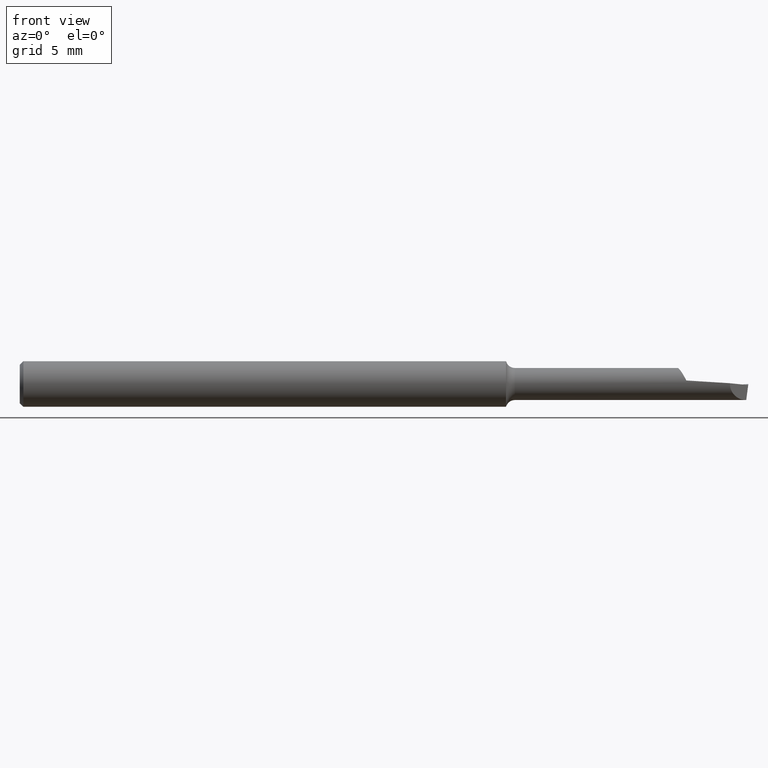
[diagram: clean part render]
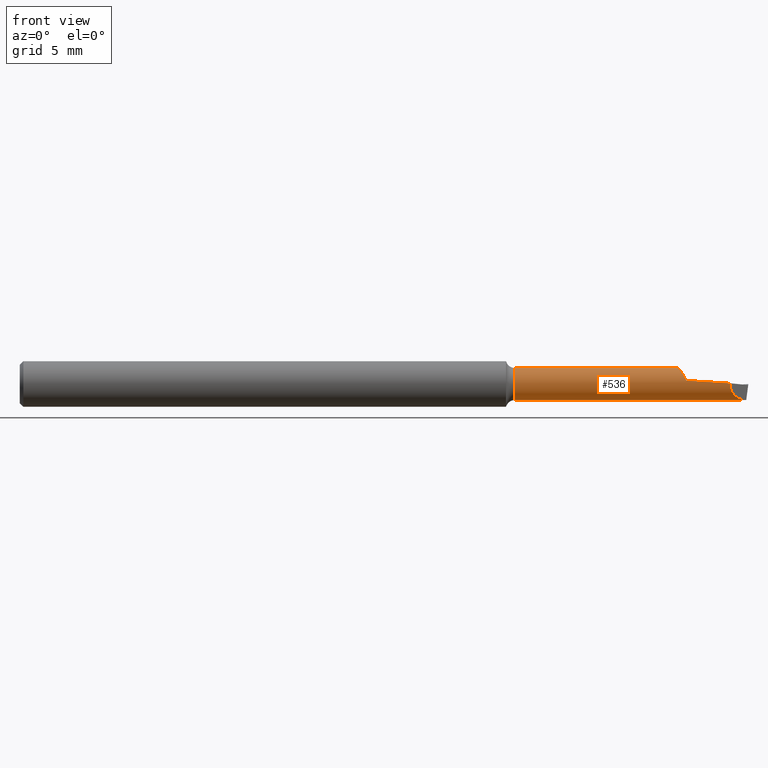
[diagram: same view with one face highlighted and labeled with its STEP entity id]
A machine part, front view. The second image highlights one B-rep face of the part: STEP entity #536.
In plain terms, the highlighted cylindrical surface (edge-blend (fillet) strip) has radius 1.1176 mm, axis along (-1, -0, -0).
Its self-contained STEP definition (entity closure, byte-faithful):
#3 = FACE_OUTER_BOUND ( 'NONE', #371, .T. ) ;
#32 = VERTEX_POINT ( 'NONE', #291 ) ;
#49 = CARTESIAN_POINT ( 'NONE',  ( 1.823979950717056875, -0.03902664238057330232, 0.02091026233644392371 ) ) ;
#54 = CARTESIAN_POINT ( 'NONE',  ( 1.949539431800300759, -0.04394692464801779747, 0.002160512434919499136 ) ) ;
#77 = VECTOR ( 'NONE', #466, 39.37007874015748143 ) ;
#106 = CIRCLE ( 'NONE', #582, 0.04399999999999992806 ) ;
#117 = CARTESIAN_POINT ( 'NONE',  ( 1.808444069729441050, -0.009427309947746567026, 0.04328785400758622393 ) ) ;
#122 = CARTESIAN_POINT ( 'NONE',  ( 1.810833164853624888, -0.01675818655935261761, 0.04076568780972762707 ) ) ;
#140 = LINE ( 'NONE', #657, #77 ) ;
#178 = VECTOR ( 'NONE', #243, 39.37007874015748143 ) ;
#185 =( BOUNDED_CURVE ( )  B_SPLINE_CURVE ( 3, ( #54, #581, #327, #578 ),
 .UNSPECIFIED., .F., .T. ) 
 B_SPLINE_CURVE_WITH_KNOTS ( ( 4, 4 ),
 ( 6.234062998859242200, 7.853981633974482790 ),
 .UNSPECIFIED. ) 
 CURVE ( )  GEOMETRIC_REPRESENTATION_ITEM ( )  RATIONAL_B_SPLINE_CURVE ( ( 1.000000000000000000, 0.7930185987682636384, 0.7930185987682636384, 1.000000000000000000 ) ) 
 REPRESENTATION_ITEM ( '' )  );
#186 = EDGE_CURVE ( 'NONE', #597, #806, #423, .T. ) ;
#190 = CARTESIAN_POINT ( 'NONE',  ( 1.826799474658925782, -0.04153783979242344632, 0.01579910718997215927 ) ) ;
#235 = CARTESIAN_POINT ( 'NONE',  ( 1.829992566228702877, -0.04291472308783400580, 0.009712185248157291506 ) ) ;
#242 = EDGE_CURVE ( 'NONE', #32, #685, #809, .T. ) ;
#243 = DIRECTION ( 'NONE',  ( -1.000000000000000000, -0.000000000000000000, -0.000000000000000000 ) ) ;
#258 = CARTESIAN_POINT ( 'NONE',  ( 1.814916789186051371, -0.02613563337595397121, 0.03539735944788183208 ) ) ;
#266 = CARTESIAN_POINT ( 'NONE',  ( 1.817210813992215623, -0.03034791570795263710, 0.03206382742248452267 ) ) ;
#269 = CARTESIAN_POINT ( 'NONE',  ( 1.949539431800300759, -0.04394692464801779747, 0.002160512434919499136 ) ) ;
#291 = CARTESIAN_POINT ( 'NONE',  ( 1.840000000000000302, 0.000000000000000000, -0.04399999999999999745 ) ) ;
#327 = CARTESIAN_POINT ( 'NONE',  ( 1.966696399294493691, -0.02678995715382523346, -0.04399999999999997663 ) ) ;
#337 = DIRECTION ( 'NONE',  ( 0.000000000000000000, 0.000000000000000000, 1.000000000000000000 ) ) ;
#354 = DIRECTION ( 'NONE',  ( -1.000000000000000000, -0.000000000000000000, -0.000000000000000000 ) ) ;
#367 = ORIENTED_EDGE ( 'NONE', *, *, #828, .T. ) ;
#371 = EDGE_LOOP ( 'NONE', ( #560, #757, #736, #476, #499, #367, #383 ) ) ;
#382 = CARTESIAN_POINT ( 'NONE',  ( 1.359099325716708107, 0.000000000000000000, 0.04399999999999992806 ) ) ;
#383 = ORIENTED_EDGE ( 'NONE', *, *, #545, .F. ) ;
#387 = CARTESIAN_POINT ( 'NONE',  ( 1.806645572135293198, -1.605047027801943588E-06, 0.04400469612014611120 ) ) ;
#390 = CARTESIAN_POINT ( 'NONE',  ( 1.819185620383701574, -0.03342947752350876323, 0.02903080982310496730 ) ) ;
#391 = VERTEX_POINT ( 'NONE', #382 ) ;
#399 = EDGE_CURVE ( 'NONE', #597, #552, #185, .T. ) ;
#405 = EDGE_CURVE ( 'NONE', #806, #507, #481, .T. ) ;
#423 =( BOUNDED_CURVE ( )  B_SPLINE_CURVE ( 2, ( #816, #746, #235 ),
 .UNSPECIFIED., .F., .T. ) 
 B_SPLINE_CURVE_WITH_KNOTS ( ( 3, 3 ),
 ( 0.09455965140952782289, 0.3148910267384269490 ),
 .UNSPECIFIED. ) 
 CURVE ( )  GEOMETRIC_REPRESENTATION_ITEM ( )  RATIONAL_B_SPLINE_CURVE ( ( 0.9833022579123034124, 0.9780948911032535387, 0.9802687885623562192 ) ) 
 REPRESENTATION_ITEM ( '' )  );
#464 = CARTESIAN_POINT ( 'NONE',  ( 1.993486356448318952, 2.561107494060246767E-17, -0.04399999999999999745 ) ) ;
#466 = DIRECTION ( 'NONE',  ( 1.000000000000000000, -0.000000000000000000, -0.000000000000000000 ) ) ;
#467 = CYLINDRICAL_SURFACE ( 'NONE', #501, 0.04399999999999996275 ) ;
#471 = CARTESIAN_POINT ( 'NONE',  ( 0.000000000000000000, 0.000000000000000000, 0.000000000000000000 ) ) ;
#476 = ORIENTED_EDGE ( 'NONE', *, *, #186, .T. ) ;
#477 = CARTESIAN_POINT ( 'NONE',  ( 0.000000000000000000, 0.000000000000000000, 0.04399999999999996275 ) ) ;
#481 = B_SPLINE_CURVE_WITH_KNOTS ( 'NONE', 3,
 ( #749, #190, #49, #390, #266, #569, #769, #258, #509, #836, #512, #701, #629, #502, #122, #117, #756, #387 ),
 .UNSPECIFIED., .F., .F.,
 ( 4, 2, 2, 1, 2, 2, 1, 2, 2, 4 ),
 ( 0.000000000000000000, 0.2283272976861365766, 0.4566545953722731532, 0.4851955075830431952, 0.4994659636884280496, 0.5066011917411206156, 0.5137364197938132371, 0.5708182442153262315, 0.6849818930583525534, 0.9133091907444047530 ),
 .UNSPECIFIED. ) ;
#490 = CARTESIAN_POINT ( 'NONE',  ( 0.000000000000000000, 5.388445916248349113E-18, -0.04399999999999996275 ) ) ;
#492 = CARTESIAN_POINT ( 'NONE',  ( 1.829992566228702877, -0.04291472308783400580, 0.009712185248157291506 ) ) ;
#499 = ORIENTED_EDGE ( 'NONE', *, *, #405, .T. ) ;
#501 = AXIS2_PLACEMENT_3D ( 'NONE', #471, #725, #521 ) ;
#502 = CARTESIAN_POINT ( 'NONE',  ( 1.811745317520776499, -0.01920173961563133996, 0.03968366555626485354 ) ) ;
#507 = VERTEX_POINT ( 'NONE', #533 ) ;
#509 = CARTESIAN_POINT ( 'NONE',  ( 1.814786095772713770, -0.02588050179024483505, 0.03558385482274704914 ) ) ;
#512 = CARTESIAN_POINT ( 'NONE',  ( 1.814545427257609589, -0.02540460560934992493, 0.03592543944315640392 ) ) ;
#521 = DIRECTION ( 'NONE',  ( 0.000000000000000000, 0.000000000000000000, 1.000000000000000000 ) ) ;
#523 = CARTESIAN_POINT ( 'NONE',  ( 1.359099325716708107, 5.388445916248346802E-18, -0.04399999999999992806 ) ) ;
#529 = DIRECTION ( 'NONE',  ( -1.000000000000000000, -0.000000000000000000, -0.000000000000000000 ) ) ;
#533 = CARTESIAN_POINT ( 'NONE',  ( 1.806645572135293198, -1.605047027801943588E-06, 0.04400469612014611120 ) ) ;
#536 = ADVANCED_FACE ( 'NONE', ( #3 ), #467, .T. ) ;
#545 = EDGE_CURVE ( 'NONE', #685, #391, #106, .T. ) ;
#552 = VERTEX_POINT ( 'NONE', #464 ) ;
#560 = ORIENTED_EDGE ( 'NONE', *, *, #242, .F. ) ;
#569 = CARTESIAN_POINT ( 'NONE',  ( 1.815464310423884120, -0.02717308892188127420, 0.03460964738091050485 ) ) ;
#578 = CARTESIAN_POINT ( 'NONE',  ( 1.993486356448318952, 2.561107494060246767E-17, -0.04399999999999999745 ) ) ;
#581 = CARTESIAN_POINT ( 'NONE',  ( 1.948223976446624262, -0.04526238000169507947, -0.02459712911878014080 ) ) ;
#582 = AXIS2_PLACEMENT_3D ( 'NONE', #708, #529, #337 ) ;
#597 = VERTEX_POINT ( 'NONE', #269 ) ;
#629 = CARTESIAN_POINT ( 'NONE',  ( 1.813287227960137749, -0.02278125752315570546, 0.03766814748199937002 ) ) ;
#657 = CARTESIAN_POINT ( 'NONE',  ( 1.799999999999999822, 0.000000000000000000, -0.04399999999999999745 ) ) ;
#685 = VERTEX_POINT ( 'NONE', #523 ) ;
#701 = CARTESIAN_POINT ( 'NONE',  ( 1.813898009644643095, -0.02410727843304570975, 0.03683892710515036112 ) ) ;
#708 = CARTESIAN_POINT ( 'NONE',  ( 1.359099325716708107, 0.000000000000000000, 0.000000000000000000 ) ) ;
#725 = DIRECTION ( 'NONE',  ( -1.000000000000000000, -0.000000000000000000, -0.000000000000000000 ) ) ;
#729 = VECTOR ( 'NONE', #354, 39.37007874015748143 ) ;
#736 = ORIENTED_EDGE ( 'NONE', *, *, #399, .F. ) ;
#746 = CARTESIAN_POINT ( 'NONE',  ( 1.889951090927360022, -0.04375909165793846062, 0.005981218174915104921 ) ) ;
#749 = CARTESIAN_POINT ( 'NONE',  ( 1.829992566228702877, -0.04291472308783400580, 0.009712185248157291506 ) ) ;
#756 = CARTESIAN_POINT ( 'NONE',  ( 1.807314490149678265, -0.004551947338656386552, 0.04399987081629620073 ) ) ;
#757 = ORIENTED_EDGE ( 'NONE', *, *, #773, .T. ) ;
#769 = CARTESIAN_POINT ( 'NONE',  ( 1.815183125529622687, -0.02664943211677352208, 0.03501616045287824636 ) ) ;
#773 = EDGE_CURVE ( 'NONE', #32, #552, #140, .T. ) ;
#793 = LINE ( 'NONE', #477, #729 ) ;
#806 = VERTEX_POINT ( 'NONE', #492 ) ;
#809 = LINE ( 'NONE', #490, #178 ) ;
#816 = CARTESIAN_POINT ( 'NONE',  ( 1.949539431800300759, -0.04394692464801779747, 0.002160512434919499136 ) ) ;
#828 = EDGE_CURVE ( 'NONE', #507, #391, #793, .T. ) ;
#836 = CARTESIAN_POINT ( 'NONE',  ( 1.814690202429094734, -0.02569215562060223751, 0.03572036288893589567 ) ) ;